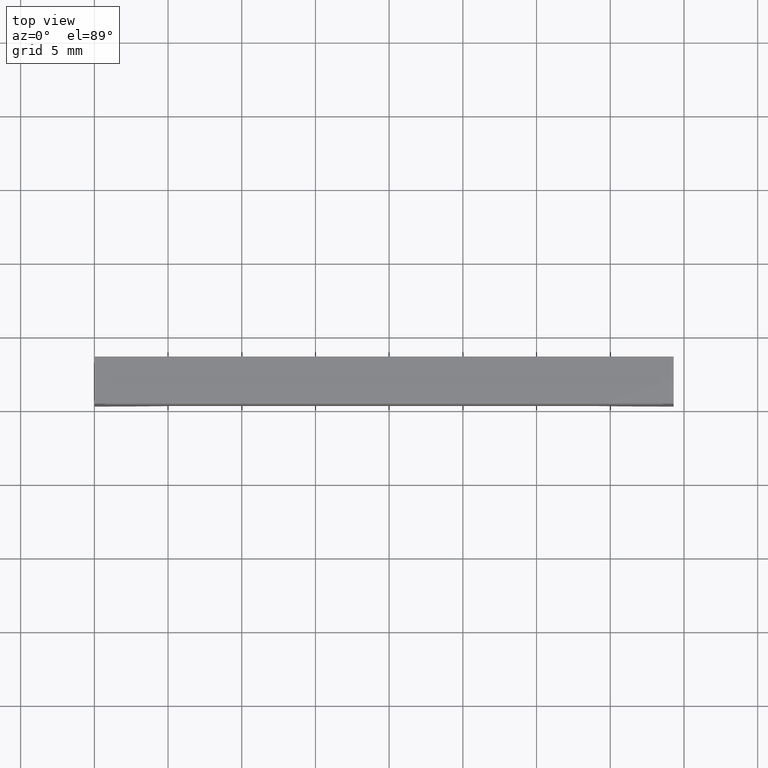
[diagram: clean part render]
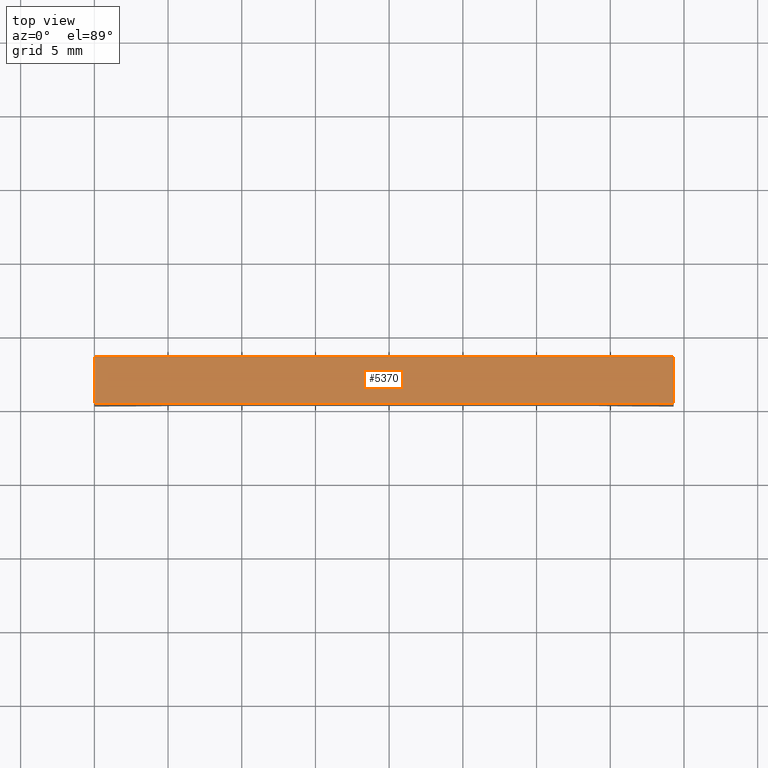
[diagram: same view with one face highlighted and labeled with its STEP entity id]
A machine part, top view. The second image highlights one B-rep face of the part: STEP entity #5370.
In plain terms, the highlighted planar face has unit normal (0, -0, 1).
Its self-contained STEP definition (entity closure, byte-faithful):
#4690=CARTESIAN_POINT('',(2.58553886079762,-5.97280981811658,
74.9099999999993));
#4700=VERTEX_POINT('',#4690);
#4870=CARTESIAN_POINT('',(2.58553886079762,-5.97280981811658,
35.6099999999978));
#4880=VERTEX_POINT('',#4870);
#4910=CARTESIAN_POINT('',(2.58553886079762,-5.97280981811658,38.874984))
;
#4920=DIRECTION('',(3.08148791101958E-33,-1.23259516440783E-32,-1.));
#4930=VECTOR('',#4920,1.);
#4940=LINE('',#4910,#4930);
#4950=EDGE_CURVE('',#4700,#4880,#4940,.T.);
#5070=CARTESIAN_POINT('',(2.68553886079762,-5.97280981811658,
66.0099999999988));
#5080=DIRECTION('',(3.79822709830392E-65,1.,-1.23259516440783E-32));
#5090=DIRECTION('',(-3.08148791101958E-33,1.23259516440783E-32,1.));
#5100=AXIS2_PLACEMENT_3D('',#5070,#5080,#5090);
#5110=PLANE('',#5100);
#5120=CARTESIAN_POINT('',(2.68553886079762,-5.97280981811658,
35.6099999999978));
#5130=DIRECTION('',(-1.,0.,-3.08148791101958E-33));
#5140=VECTOR('',#5130,1.);
#5150=LINE('',#5120,#5140);
#5160=CARTESIAN_POINT('',(5.78553886079762,-5.97280981811658,
35.6099999999978));
#5170=VERTEX_POINT('',#5160);
#5180=EDGE_CURVE('',#5170,#4880,#5150,.T.);
#5190=ORIENTED_EDGE('',*,*,#5180,.T.);
#5200=CARTESIAN_POINT('',(5.78553886079762,-5.97280981811658,
47.0749840000005));
#5210=DIRECTION('',(-3.08148791101958E-33,1.23259516440783E-32,1.));
#5220=VECTOR('',#5210,1.);
#5230=LINE('',#5200,#5220);
#5240=CARTESIAN_POINT('',(5.78553886079762,-5.97280981811658,
74.9099999999993));
#5250=VERTEX_POINT('',#5240);
#5260=EDGE_CURVE('',#5170,#5250,#5230,.T.);
#5270=ORIENTED_EDGE('',*,*,#5260,.F.);
#5280=CARTESIAN_POINT('',(5.68553886079762,-5.97280981811658,
74.9099999999993));
#5290=DIRECTION('',(1.,0.,3.08148791101958E-33));
#5300=VECTOR('',#5290,1.);
#5310=LINE('',#5280,#5300);
#5320=EDGE_CURVE('',#4700,#5250,#5310,.T.);
#5330=ORIENTED_EDGE('',*,*,#5320,.T.);
#5340=ORIENTED_EDGE('',*,*,#4950,.F.);
#5350=EDGE_LOOP('',(#5340,#5330,#5270,#5190));
#5360=FACE_OUTER_BOUND('',#5350,.T.);
#5370=ADVANCED_FACE('',(#5360),#5110,.T.);